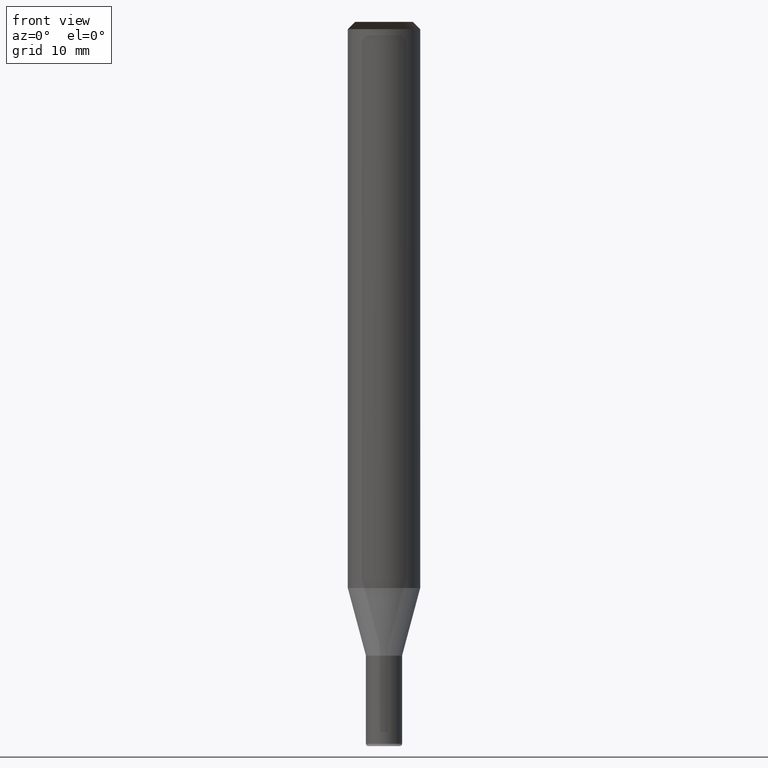
[diagram: clean part render]
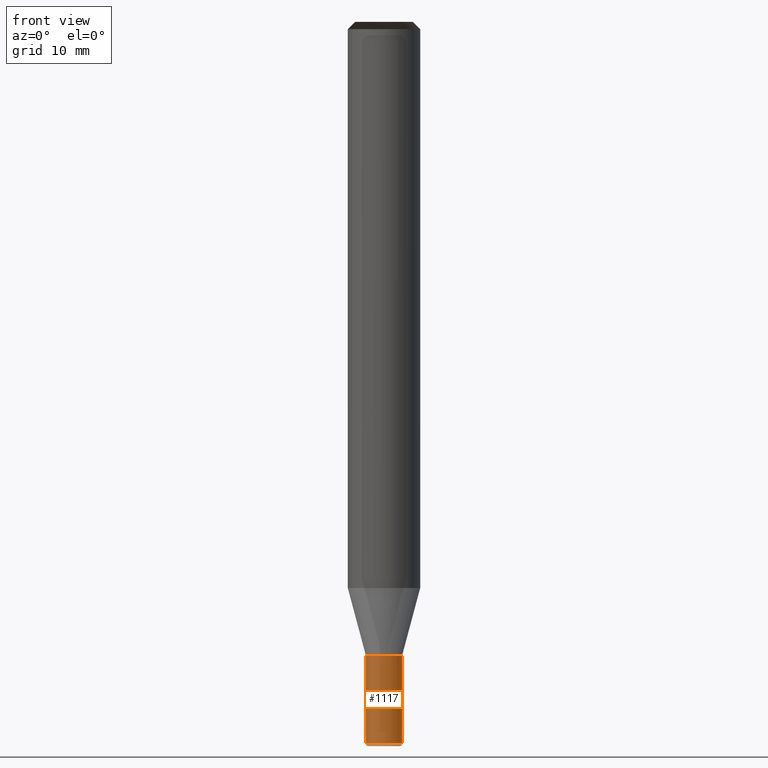
[diagram: same view with one face highlighted and labeled with its STEP entity id]
A machine part, front view. The second image highlights one B-rep face of the part: STEP entity #1117.
In plain terms, the highlighted face is a freeform B-spline surface patch.
Its self-contained STEP definition (entity closure, byte-faithful):
#927=CARTESIAN_POINT('',(1.5,0.0,-12.898076211353));
#931=CARTESIAN_POINT('',(-1.5,0.0,-12.898076211353));
#932=CARTESIAN_POINT('',(1.5,0.0,-5.598076211353));
#936=CARTESIAN_POINT('',(-1.5,0.0,-5.598076211353));
#950=CARTESIAN_POINT('',(-1.5,-1.5,-12.898076211353));
#951=CARTESIAN_POINT('',(0.0,-1.5,-12.898076211353));
#952=CARTESIAN_POINT('',(1.5,-1.5,-12.898076211353));
#953=CARTESIAN_POINT('',(-1.5,-1.5,-5.598076211353));
#954=CARTESIAN_POINT('',(0.0,-1.5,-5.598076211353));
#955=CARTESIAN_POINT('',(1.5,-1.5,-5.598076211353));
#1098=(
BOUNDED_SURFACE()
B_SPLINE_SURFACE(1,2,(
(#931,#950,#951,#952,#927),
(#936,#953,#954,#955,#932)
), .UNSPECIFIED.,.F.,.F.,.F.)
B_SPLINE_SURFACE_WITH_KNOTS((2,2),(3,2,3),(
0.0,1.0),(
0.0,0.5,1.0), .UNSPECIFIED.)
GEOMETRIC_REPRESENTATION_ITEM()
RATIONAL_B_SPLINE_SURFACE(((1.0,0.707106781187,1.0,0.707106781187,1.0),
(1.0,0.707106781187,1.0,0.707106781187,1.0)
))
REPRESENTATION_ITEM('')
SURFACE()
);
#1099=(
BOUNDED_CURVE()
B_SPLINE_CURVE(1,(#936,#931),.UNSPECIFIED.,.F.,.F.)
B_SPLINE_CURVE_WITH_KNOTS((2,2),
(0.0,1.0),.UNSPECIFIED.)
CURVE()
GEOMETRIC_REPRESENTATION_ITEM()
RATIONAL_B_SPLINE_CURVE((1.0,1.0))
REPRESENTATION_ITEM('')
);
#1100=(
BOUNDED_CURVE()
B_SPLINE_CURVE(2,(#931,#950,#951,#952,#927),.UNSPECIFIED.,.F.,.F.)
B_SPLINE_CURVE_WITH_KNOTS((3,2,3),
(0.0,0.5,1.0),.UNSPECIFIED.)
CURVE()
GEOMETRIC_REPRESENTATION_ITEM()
RATIONAL_B_SPLINE_CURVE((1.0,0.707106781187,1.0,0.707106781187,1.0))
REPRESENTATION_ITEM('')
);
#1101=(
BOUNDED_CURVE()
B_SPLINE_CURVE(1,(#927,#932),.UNSPECIFIED.,.F.,.F.)
B_SPLINE_CURVE_WITH_KNOTS((2,2),
(0.0,1.0),.UNSPECIFIED.)
CURVE()
GEOMETRIC_REPRESENTATION_ITEM()
RATIONAL_B_SPLINE_CURVE((1.0,1.0))
REPRESENTATION_ITEM('')
);
#1102=(
BOUNDED_CURVE()
B_SPLINE_CURVE(2,(#932,#955,#954,#953,#936),.UNSPECIFIED.,.F.,.F.)
B_SPLINE_CURVE_WITH_KNOTS((3,2,3),
(0.0,0.5,1.0),.UNSPECIFIED.)
CURVE()
GEOMETRIC_REPRESENTATION_ITEM()
RATIONAL_B_SPLINE_CURVE((1.0,0.707106781187,1.0,0.707106781187,1.0))
REPRESENTATION_ITEM('')
);
#1103=VERTEX_POINT('',#927);
#1104=VERTEX_POINT('',#931);
#1105=VERTEX_POINT('',#932);
#1106=VERTEX_POINT('',#936);
#1107=EDGE_CURVE('',#1106,#1104,#1099,.T.);
#1108=EDGE_CURVE('',#1104,#1103,#1100,.T.);
#1109=EDGE_CURVE('',#1103,#1105,#1101,.T.);
#1110=EDGE_CURVE('',#1105,#1106,#1102,.T.);
#1111=ORIENTED_EDGE('',*,*,#1107,.T.);
#1112=ORIENTED_EDGE('',*,*,#1108,.T.);
#1113=ORIENTED_EDGE('',*,*,#1109,.T.);
#1114=ORIENTED_EDGE('',*,*,#1110,.T.);
#1115=EDGE_LOOP('',(#1111,#1112,#1113,#1114));
#1116=FACE_OUTER_BOUND('',#1115,.T.);
#1117=ADVANCED_FACE('',(#1116),#1098,.T.);